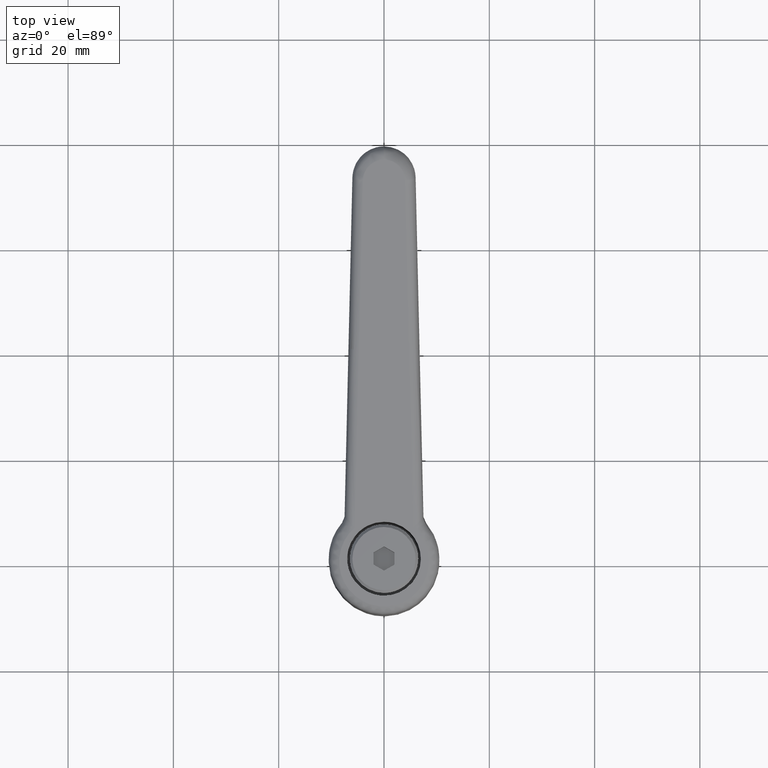
[diagram: clean part render]
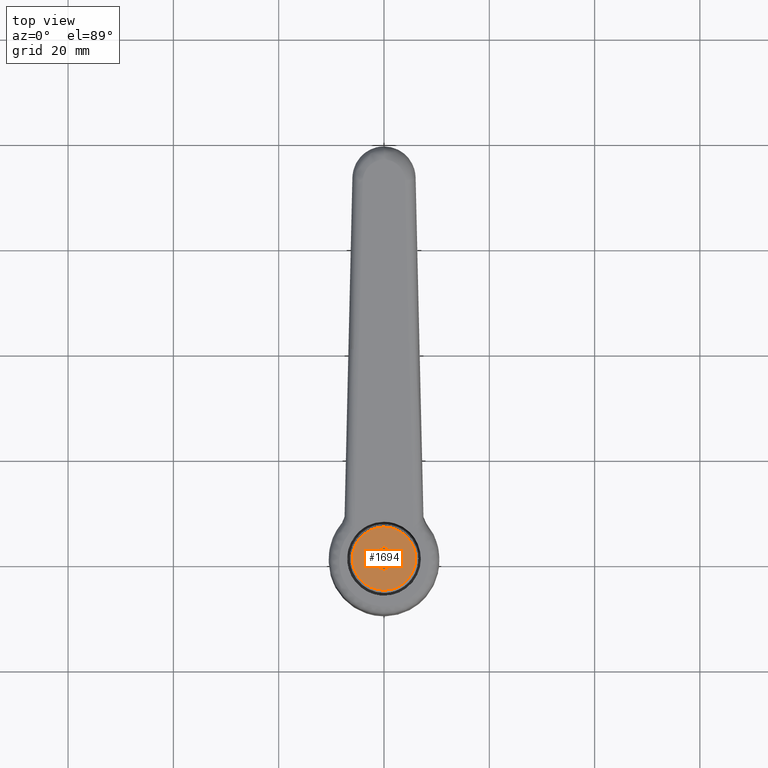
[diagram: same view with one face highlighted and labeled with its STEP entity id]
A machine part, top view. The second image highlights one B-rep face of the part: STEP entity #1694.
In plain terms, the highlighted face is a freeform B-spline surface patch.
Its self-contained STEP definition (entity closure, byte-faithful):
#1337=CARTESIAN_POINT('',(-3.874452538072281,-4.581334221576549,27.999999841123220));
#1338=VERTEX_POINT('',#1337);
#1339=CARTESIAN_POINT('',(-6.000000000000100,0.0,28.0));
#1340=VERTEX_POINT('',#1339);
#1341=CARTESIAN_POINT('',(-3.874452538072281,-4.581334221576549,27.999999841123220));
#1342=CARTESIAN_POINT('',(-4.268442042577857,-4.248329026823217,27.999999852671479));
#1343=CARTESIAN_POINT('',(-4.914225903063379,-3.540501032014309,27.999999877218571));
#1344=CARTESIAN_POINT('',(-5.532161183410855,-2.415430502854583,27.999999916234891));
#1345=CARTESIAN_POINT('',(-5.908673218165518,-1.248868084921064,27.999999956690282));
#1346=CARTESIAN_POINT('',(-6.000099691926960,-0.461560268439457,27.999999983993629));
#1347=CARTESIAN_POINT('',(-6.000000000000100,0.0,28.0));
#1348=B_SPLINE_CURVE_WITH_KNOTS('',3,(#1341,#1342,#1343,#1344,#1345,#1346,#1347),.UNSPECIFIED.,.F.,.U.,(4,1,1,1,4),(0.000000028693699,1.547569008893578,2.850759166869857,3.828186043347066,5.212849966959085),.UNSPECIFIED.);
#1349=EDGE_CURVE('',#1338,#1340,#1348,.T.);
#1351=CARTESIAN_POINT('',(0.000001288904033,5.999999999999960,28.0));
#1352=VERTEX_POINT('',#1351);
#1353=CARTESIAN_POINT('',(-6.000000000000100,0.0,28.0));
#1354=CARTESIAN_POINT('',(-6.000052414326771,0.392695631464885,28.000000000000039));
#1355=CARTESIAN_POINT('',(-5.932261664041234,1.079890314392021,27.999999999999929));
#1356=CARTESIAN_POINT('',(-5.610763778309599,2.242171225438887,28.000000000000139));
#1357=CARTESIAN_POINT('',(-5.025144343908438,3.388104167452041,27.999999999999840));
#1358=CARTESIAN_POINT('',(-4.114782653855413,4.430311529246190,28.000000000000188));
#1359=CARTESIAN_POINT('',(-3.084704188186840,5.194251869902131,27.999999999999890));
#1360=CARTESIAN_POINT('',(-2.077932703983958,5.662870056694810,28.000000000000291));
#1361=CARTESIAN_POINT('',(-1.030816110322523,5.938806882642954,27.999999999999620));
#1362=CARTESIAN_POINT('',(-0.368152627108336,6.000037995170924,28.000000000000281));
#1363=CARTESIAN_POINT('',(0.000001288904033,5.999999999999960,28.0));
#1364=B_SPLINE_CURVE_WITH_KNOTS('',3,(#1353,#1354,#1355,#1356,#1357,#1358,#1359,#1360,#1361,#1362,#1363),.UNSPECIFIED.,.F.,.U.,(4,1,1,1,1,1,1,1,4),(0.000000105091962,1.178083299037471,2.061682108321685,3.607952147767128,5.006936139018633,6.185033339259105,7.436792975116592,8.320373777832971,9.424837823707657),.UNSPECIFIED.);
#1365=EDGE_CURVE('',#1340,#1352,#1364,.T.);
#1367=CARTESIAN_POINT('',(6.000000000000100,0.0,28.0));
#1368=VERTEX_POINT('',#1367);
#1369=CARTESIAN_POINT('',(0.000001288904033,5.999999999999960,28.0));
#1370=CARTESIAN_POINT('',(0.392694611204643,6.000045810768981,27.999999999999979));
#1371=CARTESIAN_POINT('',(1.202631084431728,5.920225786091598,28.000000000000110));
#1372=CARTESIAN_POINT('',(2.192581810264349,5.613294282273120,27.999999999999741));
#1373=CARTESIAN_POINT('',(3.095567473799755,5.165653262135341,28.000000000000380));
#1374=CARTESIAN_POINT('',(3.945618032382313,4.574836874651982,27.999999999999581));
#1375=CARTESIAN_POINT('',(4.797001393458782,3.680619017375635,28.000000000000480));
#1376=CARTESIAN_POINT('',(5.386488235517088,2.710532929969064,27.999999999999289));
#1377=CARTESIAN_POINT('',(5.863245869267044,1.497003840806573,28.000000000000728));
#1378=CARTESIAN_POINT('',(6.000300044151864,0.613639586383619,27.999999999999510));
#1379=CARTESIAN_POINT('',(6.000000000000100,0.0,28.0));
#1380=B_SPLINE_CURVE_WITH_KNOTS('',3,(#1369,#1370,#1371,#1372,#1373,#1374,#1375,#1376,#1377,#1378,#1379),.UNSPECIFIED.,.F.,.U.,(4,1,1,1,1,1,1,1,4),(0.000000105542194,1.178083117791967,2.429842015696154,3.092527562396028,4.197013334862232,5.522362911767363,6.774098335348487,7.584049255847832,9.424836370803293),.UNSPECIFIED.);
#1381=EDGE_CURVE('',#1352,#1368,#1380,.T.);
#1383=CARTESIAN_POINT('',(4.352245875952805,-4.130127121909578,28.000000160892160));
#1384=VERTEX_POINT('',#1383);
#1385=CARTESIAN_POINT('',(6.000000000000100,0.0,28.0));
#1386=CARTESIAN_POINT('',(6.000056551322486,-0.403339181458241,28.000000015712391));
#1387=CARTESIAN_POINT('',(5.920757720667871,-1.186256403371699,28.000000046211468));
#1388=CARTESIAN_POINT('',(5.593425482703479,-2.257492958727892,28.000000087942318));
#1389=CARTESIAN_POINT('',(5.082156485079267,-3.252814920065128,28.000000126715850));
#1390=CARTESIAN_POINT('',(4.629919328617853,-3.837589726217446,28.000000149496142));
#1391=CARTESIAN_POINT('',(4.352245875952805,-4.130127121909578,28.000000160892160));
#1392=B_SPLINE_CURVE_WITH_KNOTS('',3,(#1385,#1386,#1387,#1388,#1389,#1390,#1391),.UNSPECIFIED.,.F.,.U.,(4,1,1,1,4),(0.000000027410166,1.210012058635921,2.348828018958658,3.345323842229519,4.555335873426611),.UNSPECIFIED.);
#1393=EDGE_CURVE('',#1368,#1384,#1392,.T.);
#1427=CARTESIAN_POINT('',(-0.000001288904016,-5.999999999999961,28.0));
#1428=VERTEX_POINT('',#1427);
#1429=CARTESIAN_POINT('',(-0.000001288904016,-5.999999999999961,28.0));
#1430=CARTESIAN_POINT('',(-0.592338554063669,-6.000263390088733,27.999999975710601));
#1431=CARTESIAN_POINT('',(-1.601310907738502,-5.849321876013575,27.999999934335911));
#1432=CARTESIAN_POINT('',(-2.901268279471107,-5.299045093317241,27.999999881030469));
#1433=CARTESIAN_POINT('',(-3.572976889648543,-4.836359910176406,27.999999853485232));
#1434=CARTESIAN_POINT('',(-3.874452538072281,-4.581334221576549,27.999999841123220));
#1435=B_SPLINE_CURVE_WITH_KNOTS('',3,(#1429,#1430,#1431,#1432,#1433,#1434),.UNSPECIFIED.,.F.,.U.,(4,1,1,4),(0.000000021204544,1.776942785211875,3.027365326614011,4.211988215998899),.UNSPECIFIED.);
#1436=EDGE_CURVE('',#1428,#1338,#1435,.T.);
#1442=CARTESIAN_POINT('',(4.352245875952805,-4.130127121909578,28.000000160892160));
#1443=CARTESIAN_POINT('',(3.933462206438841,-4.571917553065449,28.000000145410670));
#1444=CARTESIAN_POINT('',(3.264044895303546,-5.090189797518097,28.000000120664090));
#1445=CARTESIAN_POINT('',(2.211878211970784,-5.598600574348628,28.000000081767801));
#1446=CARTESIAN_POINT('',(1.242698637972031,-5.909815700024399,28.000000045939871));
#1447=CARTESIAN_POINT('',(0.456521505538300,-6.000099285020644,28.000000016876420));
#1448=CARTESIAN_POINT('',(-0.000001288904016,-5.999999999999961,28.0));
#1449=B_SPLINE_CURVE_WITH_KNOTS('',3,(#1442,#1443,#1444,#1445,#1446,#1447,#1448),.UNSPECIFIED.,.F.,.U.,(4,1,1,1,4),(0.000000028635623,1.826064057442668,2.510821941567955,3.499952053259126,4.869502330685562),.UNSPECIFIED.);
#1450=EDGE_CURVE('',#1384,#1428,#1449,.T.);
#1511=CARTESIAN_POINT('',(-2.309402000000205,0.0,28.0));
#1512=VERTEX_POINT('',#1511);
#1518=CARTESIAN_POINT('',(-1.154701000000102,-2.0,28.0));
#1519=VERTEX_POINT('',#1518);
#1520=CARTESIAN_POINT('',(-1.154701000000102,-2.0,28.0));
#1521=CARTESIAN_POINT('',(-2.309402000000205,0.0,28.0));
#1522=QUASI_UNIFORM_CURVE('',1,(#1520,#1521),.UNSPECIFIED.,.F.,.U.);
#1523=EDGE_CURVE('',#1519,#1512,#1522,.T.);
#1540=CARTESIAN_POINT('',(1.154701000000000,-2.0,28.0));
#1541=VERTEX_POINT('',#1540);
#1542=CARTESIAN_POINT('',(1.154701000000000,-2.0,28.0));
#1543=CARTESIAN_POINT('',(-1.154701000000102,-2.0,28.0));
#1544=QUASI_UNIFORM_CURVE('',1,(#1542,#1543),.UNSPECIFIED.,.F.,.U.);
#1545=EDGE_CURVE('',#1541,#1519,#1544,.T.);
#1562=CARTESIAN_POINT('',(2.309402000000000,0.0,28.0));
#1563=VERTEX_POINT('',#1562);
#1564=CARTESIAN_POINT('',(2.309402000000000,0.0,28.0));
#1565=CARTESIAN_POINT('',(1.154701000000000,-2.0,28.0));
#1566=QUASI_UNIFORM_CURVE('',1,(#1564,#1565),.UNSPECIFIED.,.F.,.U.);
#1567=EDGE_CURVE('',#1563,#1541,#1566,.T.);
#1584=CARTESIAN_POINT('',(1.154701000000000,2.0,28.0));
#1585=VERTEX_POINT('',#1584);
#1586=CARTESIAN_POINT('',(1.154701000000000,2.0,28.0));
#1587=CARTESIAN_POINT('',(2.309402000000000,0.0,28.0));
#1588=QUASI_UNIFORM_CURVE('',1,(#1586,#1587),.UNSPECIFIED.,.F.,.U.);
#1589=EDGE_CURVE('',#1585,#1563,#1588,.T.);
#1606=CARTESIAN_POINT('',(-1.154701000000102,2.0,28.0));
#1607=VERTEX_POINT('',#1606);
#1608=CARTESIAN_POINT('',(-1.154701000000102,2.0,28.0));
#1609=CARTESIAN_POINT('',(1.154701000000000,2.0,28.0));
#1610=QUASI_UNIFORM_CURVE('',1,(#1608,#1609),.UNSPECIFIED.,.F.,.U.);
#1611=EDGE_CURVE('',#1607,#1585,#1610,.T.);
#1628=CARTESIAN_POINT('',(-2.309402000000205,0.0,28.0));
#1629=CARTESIAN_POINT('',(-1.154701000000102,2.0,28.0));
#1630=QUASI_UNIFORM_CURVE('',1,(#1628,#1629),.UNSPECIFIED.,.F.,.U.);
#1631=EDGE_CURVE('',#1512,#1607,#1630,.T.);
#1673=CARTESIAN_POINT('',(-6.599399976741782,-6.599399976741627,28.0));
#1674=CARTESIAN_POINT('',(6.599400298606862,-6.599399976741627,28.0));
#1675=CARTESIAN_POINT('',(-6.599399976741782,6.599400298606710,28.0));
#1676=CARTESIAN_POINT('',(6.599400298606862,6.599400298606710,28.0));
#1677=B_SPLINE_SURFACE_WITH_KNOTS('',1,1,((#1673,#1675),(#1674,#1676)),.UNSPECIFIED.,.F.,.F.,.U.,(2,2),(2,2),(0.0,13.198800275348640),(0.0,13.198800275348340),.UNSPECIFIED.);
#1678=ORIENTED_EDGE('',*,*,#1349,.F.);
#1679=ORIENTED_EDGE('',*,*,#1436,.F.);
#1680=ORIENTED_EDGE('',*,*,#1450,.F.);
#1681=ORIENTED_EDGE('',*,*,#1393,.F.);
#1682=ORIENTED_EDGE('',*,*,#1381,.F.);
#1683=ORIENTED_EDGE('',*,*,#1365,.F.);
#1684=EDGE_LOOP('',(#1678,#1679,#1680,#1681,#1682,#1683));
#1685=FACE_OUTER_BOUND('',#1684,.T.);
#1686=ORIENTED_EDGE('',*,*,#1631,.T.);
#1687=ORIENTED_EDGE('',*,*,#1611,.T.);
#1688=ORIENTED_EDGE('',*,*,#1589,.T.);
#1689=ORIENTED_EDGE('',*,*,#1567,.T.);
#1690=ORIENTED_EDGE('',*,*,#1545,.T.);
#1691=ORIENTED_EDGE('',*,*,#1523,.T.);
#1692=EDGE_LOOP('',(#1686,#1687,#1688,#1689,#1690,#1691));
#1693=FACE_BOUND('',#1692,.T.);
#1694=ADVANCED_FACE('',(#1685,#1693),#1677,.T.);